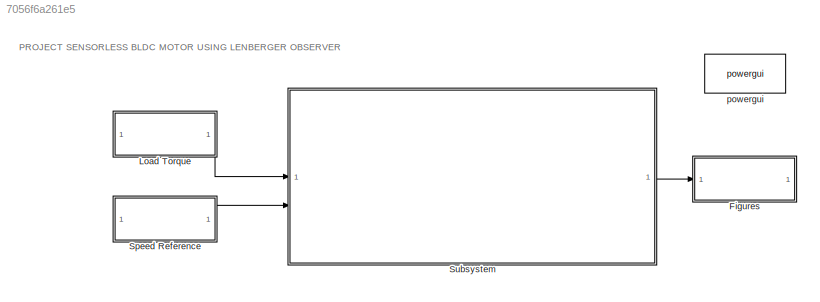
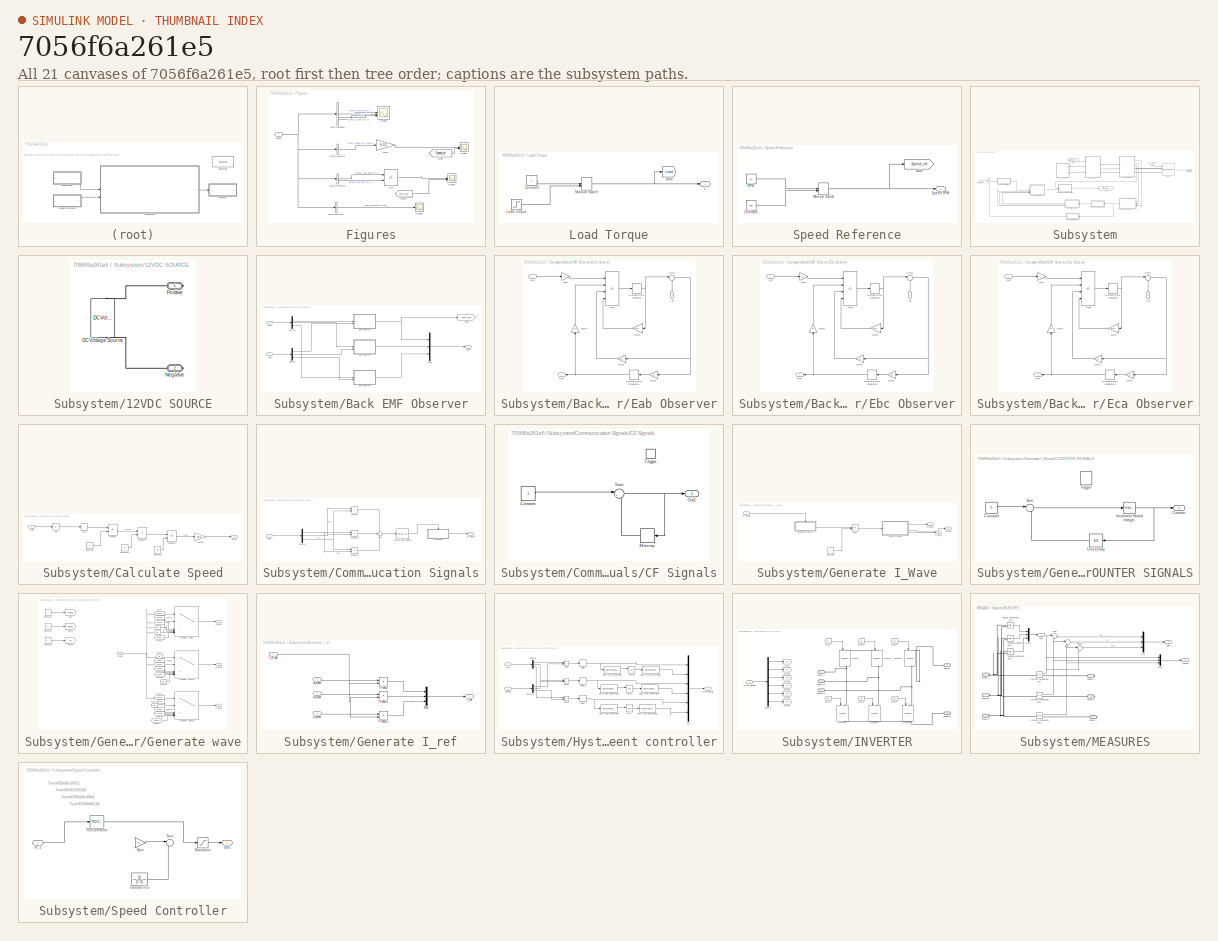
[diagram: thumbnail index - all 21 canvases of the model, root first then tree order]
MODEL slx_7056f6a261e5
KIND model
CONFIG AbsTol = auto
CONFIG EnableMultiTasking = off
CONFIG FixedStep = auto
CONFIG MaxStep = auto
CONFIG MinStep = auto
CONFIG RelTol = 1e-3
CONFIG SampleTimeConstraint = Unconstrained
CONFIG SolverName = VariableStepAuto
CONFIG StartTime = 0.0
CONFIG StopTime = 15
BLOCK [SubSystem] Figures
BLOCK [BusSelector] Figures/Bus Selector
  OutputSignals = Stator current is_a (A),Stator current is_b (A),Stator current is_c (A)
BLOCK [BusSelector] Figures/Bus Selector1
  OutputSignals = Rotor speed wm (rad/s)
BLOCK [BusSelector] Figures/Bus Selector2
  OutputSignals = Electromagnetic torque Te (N*m)
BLOCK [BusSelector] Figures/Bus Selector3
  OutputSignals = Stator back EMF e_a (V),Stator back EMF e_b (V)
BLOCK [From] Figures/From
  GotoTag = Speed_ref
  TagVisibility = global
BLOCK [From] Figures/From1
  GotoTag = user_e_ab
  TagVisibility = global
BLOCK [Gain] Figures/Gain
  Gain = 9.55
BLOCK [Inport] Figures/Meas
BLOCK [Scope] Figures/Scope
  Floating = off
  NumInputPorts = 2
  ScopeSpecificationString = Simulink.scopes.TimeScopeBlockCfg('CurrentConfiguration', extmgr.ConfigurationSet(extmgr.Configuration('Core','General UI',true),extmgr.Configuration('Core','Source UI',true),extmgr.Configuration('Sources','WiredSimulink',true),extmgr.Configuration('Visuals','Time Domain',true,'SerializedDisplays',{struct('MinYLimReal','-99.25691','MaxYLimReal','393.31218','YLabelReal','','MinYLimMag','0.00000','M...<+1490ch>
BLOCK [Scope] Figures/Scope1
  Floating = off
  NumInputPorts = 1
  ScopeSpecificationString = Simulink.scopes.TimeScopeBlockCfg('CurrentConfiguration', extmgr.ConfigurationSet(extmgr.Configuration('Core','General UI',true),extmgr.Configuration('Core','Source UI',true),extmgr.Configuration('Sources','WiredSimulink',true,'DataLoggingVariableName','ScopeData1'),extmgr.Configuration('Visuals','Time Domain',true,'SerializedDisplays',{struct('MinYLimReal','-0.08718','MaxYLimReal','0.08502','YLab...<+1511ch>
BLOCK [Scope] Figures/Scope2
  Floating = off
  NumInputPorts = 2
  ScopeSpecificationString = Simulink.scopes.TimeScopeBlockCfg('CurrentConfiguration', extmgr.ConfigurationSet(extmgr.Configuration('Core','General UI',true),extmgr.Configuration('Core','Source UI',true),extmgr.Configuration('Sources','WiredSimulink',true,'DataLoggingVariableName','ScopeData2'),extmgr.Configuration('Visuals','Time Domain',true,'SerializedDisplays',{struct('MinYLimReal','-1.00505','MaxYLimReal','0.81695','YLab...<+1540ch>
BLOCK [Scope] Figures/Scope3
  Floating = off
  NumInputPorts = 3
  ScopeSpecificationString = Simulink.scopes.TimeScopeBlockCfg('CurrentConfiguration', extmgr.ConfigurationSet(extmgr.Configuration('Core','General UI',true),extmgr.Configuration('Core','Source UI',true),extmgr.Configuration('Sources','WiredSimulink',true,'DataLoggingVariableName','ScopeData3'),extmgr.Configuration('Visuals','Time Domain',true,'SerializedDisplays',{struct('MinYLimReal','-0.34765','MaxYLimReal','1.05709','YLab...<+1579ch>
BLOCK [Sum] Figures/Sum
  IconShape = rectangular
  Inputs = +-
BLOCK [SubSystem] Load Torque
BLOCK [Constant] Load Torque/Constant
  Value = 0
BLOCK [Goto] Load Torque/Goto
  GotoTag = Load
BLOCK [Outport] Load Torque/L
BLOCK [Step] Load Torque/Load Torque
  SampleTime = 0
BLOCK [ManualSwitch] Load Torque/Manual Switch
BLOCK [SubSystem] Speed Reference
BLOCK [Constant] Speed Reference/1000rpm
  Value = 2000
BLOCK [Goto] Speed Reference/Goto
  GotoTag = Speed_ref
  TagVisibility = global
BLOCK [ManualSwitch] Speed Reference/Manual Switch
BLOCK [Constant] Speed Reference/RPM
  Value = -50
BLOCK [Outport] Speed Reference/Speed RPM
BLOCK [SubSystem] Subsystem
BLOCK [SubSystem] Subsystem/12VDC SOURCE
BLOCK [Reference] Subsystem/12VDC SOURCE/DC Voltage Source  REF=spsDCVoltageSourceLib/DC Voltage Source
  LibrarySourceBlock = sps_lib/Sources/DC Voltage Source
  SourceBlock = spsDCVoltageSourceLib/DC Voltage Source
  SourceType = DC Voltage Source
BLOCK [PMIOPort] Subsystem/12VDC SOURCE/Negative
  NameLocation = top
  Port = 2
  Side = Right
BLOCK [PMIOPort] Subsystem/12VDC SOURCE/Positive
  NameLocation = top
  Side = Right
BLOCK [Reference] Subsystem/BLDC  REF=spsPermanentMagnetSynchronousMachineLib/Permanent Magnet
Synchronous Machine
  LibrarySourceBlock = sps_lib/Electrical Machines/Permanent Magnet\nSynchronous Machine
  SourceBlock = spsPermanentMagnetSynchronousMachineLib/Permanent Magnet\nSynchronous Machine
  SourceType = Permanent Magnet Synchronous Machine
BLOCK [SubSystem] Subsystem/Back EMF Observer
  NameLocation = top
BLOCK [Demux] Subsystem/Back EMF Observer/Demux
  Outputs = 3
BLOCK [Demux] Subsystem/Back EMF Observer/Demux1
  Outputs = 3
BLOCK [SubSystem] Subsystem/Back EMF Observer/Eab Observer
BLOCK [DiscreteIntegrator] Subsystem/Back EMF Observer/Eab Observer/Discrete-Time Integrator
  ICPrevOutput = DiscIntNeverNeededParam
  ICPrevScaledInput = DiscIntNeverNeededParam
  InitialConditionSetting = Auto
  SampleTime = Ts
BLOCK [DiscreteIntegrator] Subsystem/Back EMF Observer/Eab Observer/Discrete-Time Integrator1
  ICPrevOutput = DiscIntNeverNeededParam
  ICPrevScaledInput = DiscIntNeverNeededParam
  InitialConditionSetting = Auto
  SampleTime = Ts
BLOCK [Gain] Subsystem/Back EMF Observer/Eab Observer/Gain
  Gain = 1/L
BLOCK [Gain] Subsystem/Back EMF Observer/Eab Observer/Gain1
  Gain = R/L
  NameLocation = top
BLOCK [Gain] Subsystem/Back EMF Observer/Eab Observer/Gain2
  Gain = K1
BLOCK [Gain] Subsystem/Back EMF Observer/Eab Observer/Gain3
  Gain = K2
BLOCK [Gain] Subsystem/Back EMF Observer/Eab Observer/Gain4
  Gain = 1/L
  NameLocation = right
BLOCK [Sum] Subsystem/Back EMF Observer/Eab Observer/Sum
  IconShape = rectangular
  Inputs = +-+-
BLOCK [Sum] Subsystem/Back EMF Observer/Eab Observer/Sum2
  Inputs = |-+
BLOCK [Outport] Subsystem/Back EMF Observer/Eab Observer/e_ab
BLOCK [Inport] Subsystem/Back EMF Observer/Eab Observer/i_ab
  NameLocation = left
  Port = 2
BLOCK [Inport] Subsystem/Back EMF Observer/Eab Observer/u_ab
BLOCK [SubSystem] Subsystem/Back EMF Observer/Ebc Observer
BLOCK [DiscreteIntegrator] Subsystem/Back EMF Observer/Ebc Observer/Discrete-Time Integrator
  ICPrevOutput = DiscIntNeverNeededParam
  ICPrevScaledInput = DiscIntNeverNeededParam
  InitialConditionSetting = Auto
  SampleTime = Ts
BLOCK [DiscreteIntegrator] Subsystem/Back EMF Observer/Ebc Observer/Discrete-Time Integrator1
  ICPrevOutput = DiscIntNeverNeededParam
  ICPrevScaledInput = DiscIntNeverNeededParam
  InitialConditionSetting = Auto
  SampleTime = Ts
BLOCK [Gain] Subsystem/Back EMF Observer/Ebc Observer/Gain
  Gain = 1/L
BLOCK [Gain] Subsystem/Back EMF Observer/Ebc Observer/Gain1
  Gain = R/L
  NameLocation = top
BLOCK [Gain] Subsystem/Back EMF Observer/Ebc Observer/Gain2
  Gain = K1
BLOCK [Gain] Subsystem/Back EMF Observer/Ebc Observer/Gain3
  Gain = K2
BLOCK [Gain] Subsystem/Back EMF Observer/Ebc Observer/Gain4
  Gain = 1/L
  NameLocation = right
BLOCK [Sum] Subsystem/Back EMF Observer/Ebc Observer/Sum
  IconShape = rectangular
  Inputs = +-+-
BLOCK [Sum] Subsystem/Back EMF Observer/Ebc Observer/Sum2
  Inputs = |-+
BLOCK [Outport] Subsystem/Back EMF Observer/Ebc Observer/e_bc
BLOCK [Inport] Subsystem/Back EMF Observer/Ebc Observer/i_bc
  NameLocation = left
  Port = 2
BLOCK [Inport] Subsystem/Back EMF Observer/Ebc Observer/u_bc
BLOCK [SubSystem] Subsystem/Back EMF Observer/Eca Observer
BLOCK [DiscreteIntegrator] Subsystem/Back EMF Observer/Eca Observer/Discrete-Time Integrator
  ICPrevOutput = DiscIntNeverNeededParam
  ICPrevScaledInput = DiscIntNeverNeededParam
  InitialConditionSetting = Auto
  SampleTime = Ts
BLOCK [DiscreteIntegrator] Subsystem/Back EMF Observer/Eca Observer/Discrete-Time Integrator1
  ICPrevOutput = DiscIntNeverNeededParam
  ICPrevScaledInput = DiscIntNeverNeededParam
  InitialConditionSetting = Auto
  SampleTime = Ts
BLOCK [Gain] Subsystem/Back EMF Observer/Eca Observer/Gain
  Gain = 1/L
BLOCK [Gain] Subsystem/Back EMF Observer/Eca Observer/Gain1
  Gain = R/L
  NameLocation = top
BLOCK [Gain] Subsystem/Back EMF Observer/Eca Observer/Gain2
  Gain = K1
BLOCK [Gain] Subsystem/Back EMF Observer/Eca Observer/Gain3
  Gain = K2
BLOCK [Gain] Subsystem/Back EMF Observer/Eca Observer/Gain4
  Gain = 1/L
  NameLocation = right
BLOCK [Sum] Subsystem/Back EMF Observer/Eca Observer/Sum
  IconShape = rectangular
  Inputs = +-+-
BLOCK [Sum] Subsystem/Back EMF Observer/Eca Observer/Sum2
  Inputs = |-+
BLOCK [Outport] Subsystem/Back EMF Observer/Eca Observer/e_ca
BLOCK [Inport] Subsystem/Back EMF Observer/Eca Observer/i_ca
  NameLocation = left
  Port = 2
BLOCK [Inport] Subsystem/Back EMF Observer/Eca Observer/u_ca
BLOCK [Goto] Subsystem/Back EMF Observer/Goto
  GotoTag = user_e_ab
  TagVisibility = global
BLOCK [Mux] Subsystem/Back EMF Observer/Mux
  DisplayOption = bar
  Inputs = 3
BLOCK [Outport] Subsystem/Back EMF Observer/e_line
BLOCK [Inport] Subsystem/Back EMF Observer/i_line
BLOCK [Inport] Subsystem/Back EMF Observer/u_line
  Port = 2
BLOCK [SubSystem] Subsystem/Calculate Speed
BLOCK [Abs] Subsystem/Calculate Speed/Abs
  SaturateOnIntegerOverflow = off
BLOCK [Constant] Subsystem/Calculate Speed/Constant
  Value = 2
BLOCK [Constant] Subsystem/Calculate Speed/Constant1
  Value = Ke
BLOCK [Constant] Subsystem/Calculate Speed/Constant2
  Value = 2/P
BLOCK [MinMax] Subsystem/Calculate Speed/Max
  Function = max
BLOCK [Product] Subsystem/Calculate Speed/Product
  Inputs = */
BLOCK [Product] Subsystem/Calculate Speed/Product1
  Inputs = */
BLOCK [Product] Subsystem/Calculate Speed/Product2
  Inputs = */
BLOCK [Outport] Subsystem/Calculate Speed/W_m
BLOCK [Inport] Subsystem/Calculate Speed/e_line
BLOCK [Gain] Subsystem/Calculate Speed/rad2sec
  Gain = 30/pi
BLOCK [SubSystem] Subsystem/Communication Signals
BLOCK [SubSystem] Subsystem/Communication Signals/CF Signals
BLOCK [Outport] Subsystem/Communication Signals/CF Signals  
BLOCK [Constant] Subsystem/Communication Signals/CF Signals/Constant
BLOCK [Memory] Subsystem/Communication Signals/CF Signals/Memory
  InheritSampleTime = on
  NameLocation = top
BLOCK [Outport] Subsystem/Communication Signals/CF Signals/Out1
BLOCK [Sum] Subsystem/Communication Signals/CF Signals/Sum
  Inputs = |+-
BLOCK [TriggerPort] Subsystem/Communication Signals/CF Signals/Trigger
  PortDimensions = 1
  StatesWhenEnabling = held
  VariantControl = (inherit)
BLOCK [Demux] Subsystem/Communication Signals/Demux
  Outputs = 3
BLOCK [Reference] Subsystem/Communication Signals/Detect Rise Positive  REF=simulink/Logic and Bit
Operations/Detect Rise
Positive
  SourceBlock = simulink/Logic and Bit\nOperations/Detect Rise\nPositive
  SourceType = Detect Rise Positive
BLOCK [Product] Subsystem/Communication Signals/Product
  Inputs = */
BLOCK [Product] Subsystem/Communication Signals/Product1
  Inputs = */
BLOCK [Product] Subsystem/Communication Signals/Product2
  Inputs = */
BLOCK [Sum] Subsystem/Communication Signals/Sum
  Inputs = +++
BLOCK [Inport] Subsystem/Communication Signals/e_line
BLOCK [From] Subsystem/From
  GotoTag = Gate_Signals
BLOCK [SubSystem] Subsystem/Generate I_Wave
BLOCK [Inport] Subsystem/Generate I_Wave/CF Signals
BLOCK [SubSystem] Subsystem/Generate I_Wave/COUNTER SIGNALS
BLOCK [Constant] Subsystem/Generate I_Wave/COUNTER SIGNALS/Constant
  Value = 0
BLOCK [Outport] Subsystem/Generate I_Wave/COUNTER SIGNALS/Counter
BLOCK [Reference] Subsystem/Generate I_Wave/COUNTER SIGNALS/Increment Stored Integer  REF=hdlsllib/Math
Operations/Increment
Stored Integer
  SourceBlock = hdlsllib/Math\nOperations/Increment\nStored Integer
  SourceType = Stored Integer Value Increment
BLOCK [Sum] Subsystem/Generate I_Wave/COUNTER SIGNALS/Sum
  Inputs = |++
BLOCK [TriggerPort] Subsystem/Generate I_Wave/COUNTER SIGNALS/Trigger
  PortDimensions = 1
  StatesWhenEnabling = held
  TriggerType = either
  VariantControl = (inherit)
BLOCK [UnitDelay] Subsystem/Generate I_Wave/COUNTER SIGNALS/Unit Delay
  HasFrameUpgradeWarning = on
  SampleTime = -1
BLOCK [Constant] Subsystem/Generate I_Wave/Constant
  Value = 6
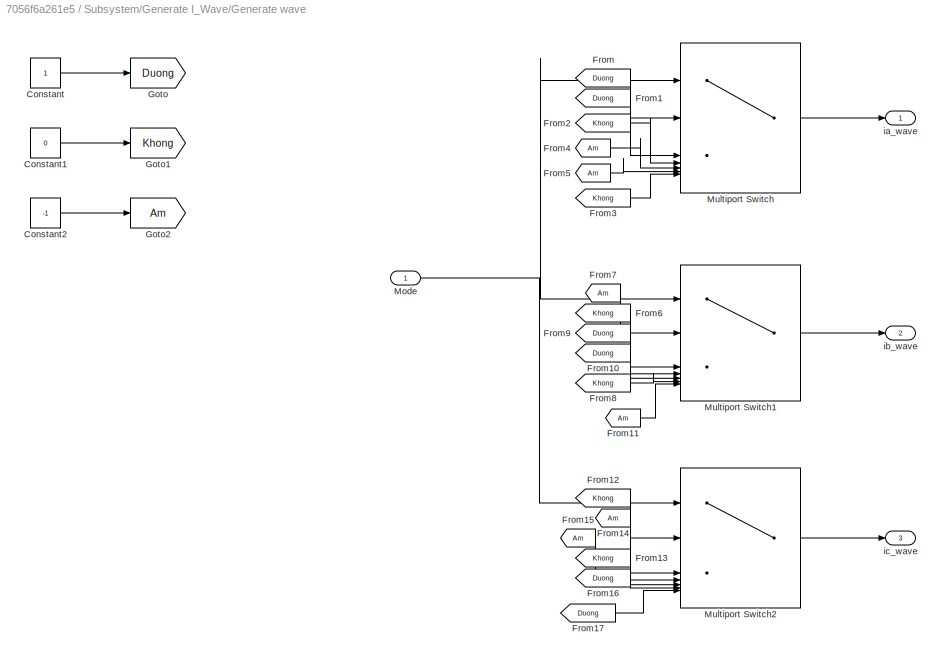
BLOCK [SubSystem] Subsystem/Generate I_Wave/Generate wave
BLOCK [Constant] Subsystem/Generate I_Wave/Generate wave/Constant
BLOCK [Constant] Subsystem/Generate I_Wave/Generate wave/Constant1
  Value = 0
BLOCK [Constant] Subsystem/Generate I_Wave/Generate wave/Constant2
  Value = -1
BLOCK [From] Subsystem/Generate I_Wave/Generate wave/From
  GotoTag = Duong
BLOCK [From] Subsystem/Generate I_Wave/Generate wave/From1
  GotoTag = Duong
BLOCK [From] Subsystem/Generate I_Wave/Generate wave/From10
  GotoTag = Duong
BLOCK [From] Subsystem/Generate I_Wave/Generate wave/From11
  GotoTag = Am
BLOCK [From] Subsystem/Generate I_Wave/Generate wave/From12
  GotoTag = Khong
BLOCK [From] Subsystem/Generate I_Wave/Generate wave/From13
  GotoTag = Khong
BLOCK [From] Subsystem/Generate I_Wave/Generate wave/From14
  GotoTag = Am
BLOCK [From] Subsystem/Generate I_Wave/Generate wave/From15
  GotoTag = Am
BLOCK [From] Subsystem/Generate I_Wave/Generate wave/From16
  GotoTag = Duong
BLOCK [From] Subsystem/Generate I_Wave/Generate wave/From17
  GotoTag = Duong
BLOCK [From] Subsystem/Generate I_Wave/Generate wave/From2
  GotoTag = Khong
BLOCK [From] Subsystem/Generate I_Wave/Generate wave/From3
  GotoTag = Khong
BLOCK [From] Subsystem/Generate I_Wave/Generate wave/From4
  GotoTag = Am
BLOCK [From] Subsystem/Generate I_Wave/Generate wave/From5
  GotoTag = Am
BLOCK [From] Subsystem/Generate I_Wave/Generate wave/From6
  GotoTag = Khong
BLOCK [From] Subsystem/Generate I_Wave/Generate wave/From7
  GotoTag = Am
BLOCK [From] Subsystem/Generate I_Wave/Generate wave/From8
  GotoTag = Khong
BLOCK [From] Subsystem/Generate I_Wave/Generate wave/From9
  GotoTag = Duong
BLOCK [Goto] Subsystem/Generate I_Wave/Generate wave/Goto
  GotoTag = Duong
BLOCK [Goto] Subsystem/Generate I_Wave/Generate wave/Goto1
  GotoTag = Khong
BLOCK [Goto] Subsystem/Generate I_Wave/Generate wave/Goto2
  GotoTag = Am
BLOCK [Inport] Subsystem/Generate I_Wave/Generate wave/Mode
BLOCK [MultiPortSwitch] Subsystem/Generate I_Wave/Generate wave/Multiport Switch
  DataPortIndices = {0,1,2,3,4,5}
  DataPortOrder = Specify indices
  InputSameDT = off
  SaturateOnIntegerOverflow = off
BLOCK [MultiPortSwitch] Subsystem/Generate I_Wave/Generate wave/Multiport Switch1
  DataPortIndices = {0,1,2,3,4,5}
  DataPortOrder = Specify indices
  InputSameDT = off
  SaturateOnIntegerOverflow = off
BLOCK [MultiPortSwitch] Subsystem/Generate I_Wave/Generate wave/Multiport Switch2
  DataPortIndices = {0,1,2,3,4,5}
  DataPortOrder = Specify indices
  InputSameDT = off
  SaturateOnIntegerOverflow = off
BLOCK [Outport] Subsystem/Generate I_Wave/Generate wave/ia_wave
BLOCK [Outport] Subsystem/Generate I_Wave/Generate wave/ib_wave
  Port = 2
BLOCK [Outport] Subsystem/Generate I_Wave/Generate wave/ic_wave
  Port = 3
BLOCK [Math] Subsystem/Generate I_Wave/Rem
  Operator = rem
BLOCK [Outport] Subsystem/Generate I_Wave/ia_wave
BLOCK [Outport] Subsystem/Generate I_Wave/ib_wave
  Port = 2
BLOCK [Outport] Subsystem/Generate I_Wave/ic_wave
  Port = 3
BLOCK [SubSystem] Subsystem/Generate I_ref
BLOCK [Inport] Subsystem/Generate I_ref/I_ref_abs
BLOCK [Mux] Subsystem/Generate I_ref/Mux
  DisplayOption = bar
  Inputs = 3
BLOCK [Product] Subsystem/Generate I_ref/Product
BLOCK [Product] Subsystem/Generate I_ref/Product1
BLOCK [Product] Subsystem/Generate I_ref/Product2
BLOCK [Outport] Subsystem/Generate I_ref/i_ref
BLOCK [Inport] Subsystem/Generate I_ref/ia_wave
  Port = 4
BLOCK [Inport] Subsystem/Generate I_ref/ib_wave
  Port = 3
BLOCK [Inport] Subsystem/Generate I_ref/ic_wave
  Port = 2
BLOCK [Goto] Subsystem/Goto
  GotoTag = Gate_Signals
BLOCK [SubSystem] Subsystem/Hysteresis current controller
BLOCK [DataTypeConversion] Subsystem/Hysteresis current controller/Data Type Conversion
  RndMeth = Floor
  SaturateOnIntegerOverflow = off
BLOCK [DataTypeConversion] Subsystem/Hysteresis current controller/Data Type Conversion1
  RndMeth = Floor
  SaturateOnIntegerOverflow = off
BLOCK [DataTypeConversion] Subsystem/Hysteresis current controller/Data Type Conversion2
  RndMeth = Floor
  SaturateOnIntegerOverflow = off
BLOCK [DataTypeConversion] Subsystem/Hysteresis current controller/Data Type Conversion3
  RndMeth = Floor
  SaturateOnIntegerOverflow = off
BLOCK [DataTypeConversion] Subsystem/Hysteresis current controller/Data Type Conversion4
  RndMeth = Floor
  SaturateOnIntegerOverflow = off
BLOCK [DataTypeConversion] Subsystem/Hysteresis current controller/Data Type Conversion5
  RndMeth = Floor
  SaturateOnIntegerOverflow = off
BLOCK [Demux] Subsystem/Hysteresis current controller/Demux
  Outputs = 3
BLOCK [Demux] Subsystem/Hysteresis current controller/Demux1
  Outputs = 3
BLOCK [Outport] Subsystem/Hysteresis current controller/Gate Signals
BLOCK [Mux] Subsystem/Hysteresis current controller/Mux
  DisplayOption = bar
  Inputs = 6
BLOCK [Logic] Subsystem/Hysteresis current controller/NOT
  AllPortsSameDT = off
  IconShape = distinctive
  Operator = NOT
  OutDataTypeStr = boolean
BLOCK [Logic] Subsystem/Hysteresis current controller/NOT1
  AllPortsSameDT = off
  IconShape = distinctive
  Operator = NOT
  OutDataTypeStr = boolean
BLOCK [Logic] Subsystem/Hysteresis current controller/NOT2
  AllPortsSameDT = off
  IconShape = distinctive
  Operator = NOT
  OutDataTypeStr = boolean
BLOCK [Relay] Subsystem/Hysteresis current controller/Relay
BLOCK [Relay] Subsystem/Hysteresis current controller/Relay1
BLOCK [Relay] Subsystem/Hysteresis current controller/Relay2
BLOCK [Sum] Subsystem/Hysteresis current controller/Sum
  IconShape = rectangular
  Inputs = +-
BLOCK [Sum] Subsystem/Hysteresis current controller/Sum1
  IconShape = rectangular
  Inputs = +-
BLOCK [Sum] Subsystem/Hysteresis current controller/Sum2
  IconShape = rectangular
  Inputs = +-
BLOCK [Inport] Subsystem/Hysteresis current controller/i_phase
BLOCK [Inport] Subsystem/Hysteresis current controller/i_ref
  Port = 2
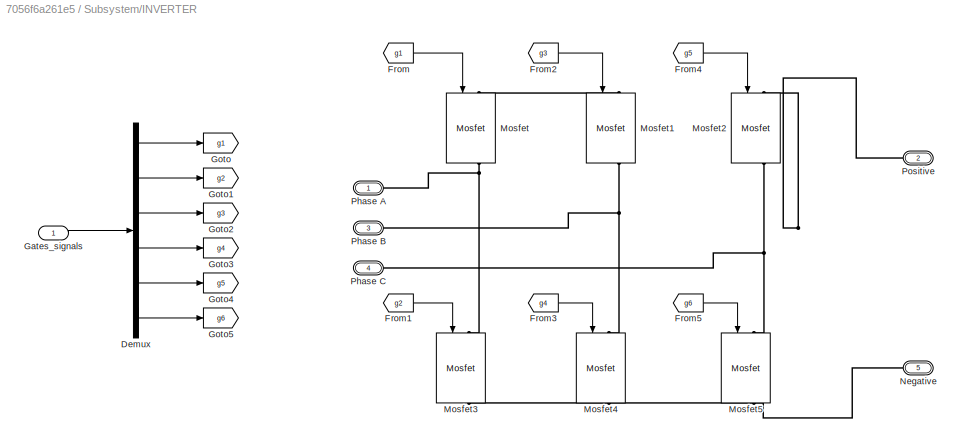
BLOCK [SubSystem] Subsystem/INVERTER
BLOCK [Demux] Subsystem/INVERTER/Demux
  Outputs = 6
BLOCK [From] Subsystem/INVERTER/From
  GotoTag = g1
BLOCK [From] Subsystem/INVERTER/From1
  GotoTag = g2
BLOCK [From] Subsystem/INVERTER/From2
  GotoTag = g3
BLOCK [From] Subsystem/INVERTER/From3
  GotoTag = g4
BLOCK [From] Subsystem/INVERTER/From4
  GotoTag = g5
BLOCK [From] Subsystem/INVERTER/From5
  GotoTag = g6
BLOCK [Inport] Subsystem/INVERTER/Gates_signals
BLOCK [Goto] Subsystem/INVERTER/Goto
  GotoTag = g1
BLOCK [Goto] Subsystem/INVERTER/Goto1
  GotoTag = g2
BLOCK [Goto] Subsystem/INVERTER/Goto2
  GotoTag = g3
BLOCK [Goto] Subsystem/INVERTER/Goto3
  GotoTag = g4
BLOCK [Goto] Subsystem/INVERTER/Goto4
  GotoTag = g5
BLOCK [Goto] Subsystem/INVERTER/Goto5
  GotoTag = g6
BLOCK [Reference] Subsystem/INVERTER/Mosfet  REF=spsMosfetLib/Mosfet
  LibrarySourceBlock = sps_lib/Power Electronics/Mosfet
  NameLocation = left
  SourceBlock = spsMosfetLib/Mosfet
  SourceType = Mosfet
BLOCK [Reference] Subsystem/INVERTER/Mosfet1  REF=spsMosfetLib/Mosfet
  LibrarySourceBlock = sps_lib/Power Electronics/Mosfet
  NameLocation = left
  SourceBlock = spsMosfetLib/Mosfet
  SourceType = Mosfet
BLOCK [Reference] Subsystem/INVERTER/Mosfet2  REF=spsMosfetLib/Mosfet
  LibrarySourceBlock = sps_lib/Power Electronics/Mosfet
  NameLocation = left
  SourceBlock = spsMosfetLib/Mosfet
  SourceType = Mosfet
BLOCK [Reference] Subsystem/INVERTER/Mosfet3  REF=spsMosfetLib/Mosfet
  LibrarySourceBlock = sps_lib/Power Electronics/Mosfet
  NameLocation = left
  SourceBlock = spsMosfetLib/Mosfet
  SourceType = Mosfet
BLOCK [Reference] Subsystem/INVERTER/Mosfet4  REF=spsMosfetLib/Mosfet
  LibrarySourceBlock = sps_lib/Power Electronics/Mosfet
  NameLocation = left
  SourceBlock = spsMosfetLib/Mosfet
  SourceType = Mosfet
BLOCK [Reference] Subsystem/INVERTER/Mosfet5  REF=spsMosfetLib/Mosfet
  LibrarySourceBlock = sps_lib/Power Electronics/Mosfet
  NameLocation = left
  SourceBlock = spsMosfetLib/Mosfet
  SourceType = Mosfet
BLOCK [PMIOPort] Subsystem/INVERTER/Negative
  NameLocation = top
  Port = 5
  Side = Left
BLOCK [PMIOPort] Subsystem/INVERTER/Phase A
  NameLocation = top
  Side = Right
BLOCK [PMIOPort] Subsystem/INVERTER/Phase B
  NameLocation = top
  Port = 3
  Side = Right
BLOCK [PMIOPort] Subsystem/INVERTER/Phase C
  NameLocation = top
  Port = 4
  Side = Right
BLOCK [PMIOPort] Subsystem/INVERTER/Positive
  NameLocation = top
  Port = 2
  Side = Left
BLOCK [Inport] Subsystem/Loas Torque
BLOCK [SubSystem] Subsystem/MEASURES
BLOCK [Reference] Subsystem/MEASURES/Current Measurement  REF=spsCurrentMeasurementLib/Current Measurement
  LibrarySourceBlock = sps_lib/Sensors and Measurements/Current Measurement
  SourceBlock = spsCurrentMeasurementLib/Current Measurement
  SourceType = Current Measurement
  UserDataPersistent = on
BLOCK [Reference] Subsystem/MEASURES/Current Measurement1  REF=spsCurrentMeasurementLib/Current Measurement
  LibrarySourceBlock = sps_lib/Sensors and Measurements/Current Measurement
  SourceBlock = spsCurrentMeasurementLib/Current Measurement
  SourceType = Current Measurement
  UserDataPersistent = on
BLOCK [Reference] Subsystem/MEASURES/Current Measurement2  REF=spsCurrentMeasurementLib/Current Measurement
  LibrarySourceBlock = sps_lib/Sensors and Measurements/Current Measurement
  SourceBlock = spsCurrentMeasurementLib/Current Measurement
  SourceType = Current Measurement
  UserDataPersistent = on
BLOCK [Mux] Subsystem/MEASURES/Mux
  DisplayOption = bar
  Inputs = 3
BLOCK [Mux] Subsystem/MEASURES/Mux1
  DisplayOption = bar
  Inputs = 3
BLOCK [Mux] Subsystem/MEASURES/Mux2
  DisplayOption = bar
  Inputs = 3
BLOCK [PMIOPort] Subsystem/MEASURES/Phase A
  NameLocation = top
  Port = 4
  Side = Right
BLOCK [PMIOPort] Subsystem/MEASURES/Phase A  
  Side = Left
BLOCK [PMIOPort] Subsystem/MEASURES/Phase B
  Port = 2
  Side = Left
BLOCK [PMIOPort] Subsystem/MEASURES/Phase B  
  NameLocation = top
  Port = 5
  Side = Right
BLOCK [PMIOPort] Subsystem/MEASURES/Phase C
  Port = 3
  Side = Left
BLOCK [PMIOPort] Subsystem/MEASURES/Phase C  
  NameLocation = top
  Port = 6
  Side = Right
BLOCK [Sum] Subsystem/MEASURES/Sum
  Inputs = |+-
BLOCK [Sum] Subsystem/MEASURES/Sum1
  Inputs = |+-
BLOCK [Sum] Subsystem/MEASURES/Sum2
  Inputs = |+-
BLOCK [Reference] Subsystem/MEASURES/Voltage Measurement  REF=spsVoltageMeasurementLib/Voltage Measurement
  LibrarySourceBlock = sps_lib/Sensors and Measurements/Voltage Measurement
  SourceBlock = spsVoltageMeasurementLib/Voltage Measurement
  SourceType = Voltage Measurement
  UserDataPersistent = on
BLOCK [Reference] Subsystem/MEASURES/Voltage Measurement1  REF=spsVoltageMeasurementLib/Voltage Measurement
  LibrarySourceBlock = sps_lib/Sensors and Measurements/Voltage Measurement
  SourceBlock = spsVoltageMeasurementLib/Voltage Measurement
  SourceType = Voltage Measurement
  UserDataPersistent = on
BLOCK [Reference] Subsystem/MEASURES/Voltage Measurement2  REF=spsVoltageMeasurementLib/Voltage Measurement
  LibrarySourceBlock = sps_lib/Sensors and Measurements/Voltage Measurement
  SourceBlock = spsVoltageMeasurementLib/Voltage Measurement
  SourceType = Voltage Measurement
  UserDataPersistent = on
BLOCK [Outport] Subsystem/MEASURES/i_line
  Port = 2
BLOCK [Outport] Subsystem/MEASURES/i_phase
  Port = 3
BLOCK [Outport] Subsystem/MEASURES/u_line
BLOCK [Outport] Subsystem/Measure
BLOCK [SubSystem] Subsystem/Speed Controller
BLOCK [Gain] Subsystem/Speed Controller/Gain
  Gain = P
BLOCK [Inport] Subsystem/Speed Controller/In_1
BLOCK [Outport] Subsystem/Speed Controller/Out1
BLOCK [Reference] Subsystem/Speed Controller/PID Controller  REF=slpidlib/PID Controller
  LibrarySourceBlock = simulink/Continuous/PID Controller
  SourceBlock = slpidlib/PID Controller
  SourceType = PID 1dof
BLOCK [Saturate] Subsystem/Speed Controller/Saturation
  LowerLimit = -11
  UpperLimit = 11
BLOCK [Sum] Subsystem/Speed Controller/Sum
  Inputs = |++
BLOCK [TransferFcn] Subsystem/Speed Controller/Transfer Fcn
  Denominator = [1 0]
  Numerator = [I]
BLOCK [Inport] Subsystem/Speed Ref
  Port = 2
BLOCK [Sum] Subsystem/Sum
  Inputs = |++
BLOCK [Reference] powergui  REF=spspowerguiLib/powergui
  LibrarySourceBlock = sps_lib/powergui
  Priority = 1
  SourceBlock = spspowerguiLib/powergui
  SourceType = PSB option menu block
ANNOTATION (root): PROJECT SENSORLESS BLDC MOTOR USING LENBERGER OBSERVER
ANNOTATION Subsystem/Speed Controller: Tuner04e83206f1f0
ANNOTATION Subsystem/Speed Controller: Tuner4f26d6e2d051
ANNOTATION Subsystem/Speed Controller: Tuner836f4fdf618b
ANNOTATION Subsystem/Speed Controller: Tunerd399ab9cd8bd
LINE Figures/Bus Selector1:1 -> Figures/Gain:1
LINE Figures/Bus Selector2:1 -> Figures/Scope1:1
LINE Figures/Bus Selector3:1 -> Figures/Sum:1
LINE Figures/Bus Selector3:2 -> Figures/Sum:2
LINE Figures/Bus Selector:1 -> Figures/Scope3:1
LINE Figures/Bus Selector:2 -> Figures/Scope3:2
LINE Figures/Bus Selector:3 -> Figures/Scope3:3
LINE Figures/From1:1 -> Figures/Scope2:2
LINE Figures/From:1 -> Figures/Scope:2
LINE Figures/Gain:1 -> Figures/Scope:1
NET Figures/Meas:1 -> Figures/Bus Selector1:1, Figures/Bus Selector2:1, Figures/Bus Selector3:1, Figures/Bus Selector:1
LINE Figures/Sum:1 -> Figures/Scope2:1
LINE Load Torque/Constant:1 -> Load Torque/Manual Switch:1
LINE Load Torque/Load Torque:1 -> Load Torque/Manual Switch:2
NET Load Torque/Manual Switch:1 -> Load Torque/Goto:1, Load Torque/L:1
LINE Load Torque:1 -> Subsystem:1
LINE Speed Reference/1000rpm:1 -> Speed Reference/Manual Switch:2
NET Speed Reference/Manual Switch:1 -> Speed Reference/Goto:1, Speed Reference/Speed RPM:1
LINE Speed Reference/RPM:1 -> Speed Reference/Manual Switch:1
LINE Speed Reference:1 -> Subsystem:2
LINE Subsystem/BLDC:1 -> Subsystem/Measure:1
LINE Subsystem/Back EMF Observer/Demux1:1 -> Subsystem/Back EMF Observer/Eab Observer:1
LINE Subsystem/Back EMF Observer/Demux1:2 -> Subsystem/Back EMF Observer/Ebc Observer:1
LINE Subsystem/Back EMF Observer/Demux1:3 -> Subsystem/Back EMF Observer/Eca Observer:1
LINE Subsystem/Back EMF Observer/Demux:1 -> Subsystem/Back EMF Observer/Eab Observer:2
LINE Subsystem/Back EMF Observer/Demux:2 -> Subsystem/Back EMF Observer/Ebc Observer:2
LINE Subsystem/Back EMF Observer/Demux:3 -> Subsystem/Back EMF Observer/Eca Observer:2
NET Subsystem/Back EMF Observer/Eab Observer/Discrete-Time Integrator1:1 -> Subsystem/Back EMF Observer/Eab Observer/Gain4:1, Subsystem/Back EMF Observer/Eab Observer/e_ab:1
NET Subsystem/Back EMF Observer/Eab Observer/Discrete-Time Integrator:1 -> Subsystem/Back EMF Observer/Eab Observer/Gain1:1, Subsystem/Back EMF Observer/Eab Observer/Sum2:1
LINE Subsystem/Back EMF Observer/Eab Observer/Gain1:1 -> Subsystem/Back EMF Observer/Eab Observer/Sum:4
LINE Subsystem/Back EMF Observer/Eab Observer/Gain2:1 -> Subsystem/Back EMF Observer/Eab Observer/Sum:3
LINE Subsystem/Back EMF Observer/Eab Observer/Gain3:1 -> Subsystem/Back EMF Observer/Eab Observer/Discrete-Time Integrator1:1
LINE Subsystem/Back EMF Observer/Eab Observer/Gain4:1 -> Subsystem/Back EMF Observer/Eab Observer/Sum:2
LINE Subsystem/Back EMF Observer/Eab Observer/Gain:1 -> Subsystem/Back EMF Observer/Eab Observer/Sum:1
NET Subsystem/Back EMF Observer/Eab Observer/Sum2:1 -> Subsystem/Back EMF Observer/Eab Observer/Gain2:1, Subsystem/Back EMF Observer/Eab Observer/Gain3:1
LINE Subsystem/Back EMF Observer/Eab Observer/Sum:1 -> Subsystem/Back EMF Observer/Eab Observer/Discrete-Time Integrator:1
LINE Subsystem/Back EMF Observer/Eab Observer/i_ab:1 -> Subsystem/Back EMF Observer/Eab Observer/Sum2:2
LINE Subsystem/Back EMF Observer/Eab Observer/u_ab:1 -> Subsystem/Back EMF Observer/Eab Observer/Gain:1
NET Subsystem/Back EMF Observer/Eab Observer:1 -> Subsystem/Back EMF Observer/Goto:1, Subsystem/Back EMF Observer/Mux:1
NET Subsystem/Back EMF Observer/Ebc Observer/Discrete-Time Integrator1:1 -> Subsystem/Back EMF Observer/Ebc Observer/Gain4:1, Subsystem/Back EMF Observer/Ebc Observer/e_bc:1
NET Subsystem/Back EMF Observer/Ebc Observer/Discrete-Time Integrator:1 -> Subsystem/Back EMF Observer/Ebc Observer/Gain1:1, Subsystem/Back EMF Observer/Ebc Observer/Sum2:1
LINE Subsystem/Back EMF Observer/Ebc Observer/Gain1:1 -> Subsystem/Back EMF Observer/Ebc Observer/Sum:4
LINE Subsystem/Back EMF Observer/Ebc Observer/Gain2:1 -> Subsystem/Back EMF Observer/Ebc Observer/Sum:3
LINE Subsystem/Back EMF Observer/Ebc Observer/Gain3:1 -> Subsystem/Back EMF Observer/Ebc Observer/Discrete-Time Integrator1:1
LINE Subsystem/Back EMF Observer/Ebc Observer/Gain4:1 -> Subsystem/Back EMF Observer/Ebc Observer/Sum:2
LINE Subsystem/Back EMF Observer/Ebc Observer/Gain:1 -> Subsystem/Back EMF Observer/Ebc Observer/Sum:1
NET Subsystem/Back EMF Observer/Ebc Observer/Sum2:1 -> Subsystem/Back EMF Observer/Ebc Observer/Gain2:1, Subsystem/Back EMF Observer/Ebc Observer/Gain3:1
LINE Subsystem/Back EMF Observer/Ebc Observer/Sum:1 -> Subsystem/Back EMF Observer/Ebc Observer/Discrete-Time Integrator:1
LINE Subsystem/Back EMF Observer/Ebc Observer/i_bc:1 -> Subsystem/Back EMF Observer/Ebc Observer/Sum2:2
LINE Subsystem/Back EMF Observer/Ebc Observer/u_bc:1 -> Subsystem/Back EMF Observer/Ebc Observer/Gain:1
LINE Subsystem/Back EMF Observer/Ebc Observer:1 -> Subsystem/Back EMF Observer/Mux:2
NET Subsystem/Back EMF Observer/Eca Observer/Discrete-Time Integrator1:1 -> Subsystem/Back EMF Observer/Eca Observer/Gain4:1, Subsystem/Back EMF Observer/Eca Observer/e_ca:1
NET Subsystem/Back EMF Observer/Eca Observer/Discrete-Time Integrator:1 -> Subsystem/Back EMF Observer/Eca Observer/Gain1:1, Subsystem/Back EMF Observer/Eca Observer/Sum2:1
LINE Subsystem/Back EMF Observer/Eca Observer/Gain1:1 -> Subsystem/Back EMF Observer/Eca Observer/Sum:4
LINE Subsystem/Back EMF Observer/Eca Observer/Gain2:1 -> Subsystem/Back EMF Observer/Eca Observer/Sum:3
LINE Subsystem/Back EMF Observer/Eca Observer/Gain3:1 -> Subsystem/Back EMF Observer/Eca Observer/Discrete-Time Integrator1:1
LINE Subsystem/Back EMF Observer/Eca Observer/Gain4:1 -> Subsystem/Back EMF Observer/Eca Observer/Sum:2
LINE Subsystem/Back EMF Observer/Eca Observer/Gain:1 -> Subsystem/Back EMF Observer/Eca Observer/Sum:1
NET Subsystem/Back EMF Observer/Eca Observer/Sum2:1 -> Subsystem/Back EMF Observer/Eca Observer/Gain2:1, Subsystem/Back EMF Observer/Eca Observer/Gain3:1
LINE Subsystem/Back EMF Observer/Eca Observer/Sum:1 -> Subsystem/Back EMF Observer/Eca Observer/Discrete-Time Integrator:1
LINE Subsystem/Back EMF Observer/Eca Observer/i_ca:1 -> Subsystem/Back EMF Observer/Eca Observer/Sum2:2
LINE Subsystem/Back EMF Observer/Eca Observer/u_ca:1 -> Subsystem/Back EMF Observer/Eca Observer/Gain:1
LINE Subsystem/Back EMF Observer/Eca Observer:1 -> Subsystem/Back EMF Observer/Mux:3
LINE Subsystem/Back EMF Observer/Mux:1 -> Subsystem/Back EMF Observer/e_line:1
LINE Subsystem/Back EMF Observer/i_line:1 -> Subsystem/Back EMF Observer/Demux:1
LINE Subsystem/Back EMF Observer/u_line:1 -> Subsystem/Back EMF Observer/Demux1:1
NET Subsystem/Back EMF Observer:1 -> Subsystem/Calculate Speed:1, Subsystem/Communication Signals:1
LINE Subsystem/Calculate Speed/Abs:1 -> Subsystem/Calculate Speed/Max:1
LINE Subsystem/Calculate Speed/Constant1:1 -> Subsystem/Calculate Speed/Product1:2
LINE Subsystem/Calculate Speed/Constant2:1 -> Subsystem/Calculate Speed/Product2:2
LINE Subsystem/Calculate Speed/Constant:1 -> Subsystem/Calculate Speed/Product:2
LINE Subsystem/Calculate Speed/Max:1 -> Subsystem/Calculate Speed/Product:1
LINE Subsystem/Calculate Speed/Product1:1 -> Subsystem/Calculate Speed/Product2:1
LINE Subsystem/Calculate Speed/Product2:1 -> Subsystem/Calculate Speed/rad2sec:1
LINE Subsystem/Calculate Speed/Product:1 -> Subsystem/Calculate Speed/Product1:1
LINE Subsystem/Calculate Speed/e_line:1 -> Subsystem/Calculate Speed/Abs:1
LINE Subsystem/Calculate Speed/rad2sec:1 -> Subsystem/Calculate Speed/W_m:1
LINE Subsystem/Calculate Speed:1 -> Subsystem/Sum:2
LINE Subsystem/Communication Signals/CF Signals/Constant:1 -> Subsystem/Communication Signals/CF Signals/Sum:1
LINE Subsystem/Communication Signals/CF Signals/Memory:1 -> Subsystem/Communication Signals/CF Signals/Sum:2
NET Subsystem/Communication Signals/CF Signals/Sum:1 -> Subsystem/Communication Signals/CF Signals/Memory:1, Subsystem/Communication Signals/CF Signals/Out1:1
LINE Subsystem/Communication Signals/CF Signals:1 -> Subsystem/Communication Signals/CF Signals  :1
NET Subsystem/Communication Signals/Demux:1 -> Subsystem/Communication Signals/Product1:1, Subsystem/Communication Signals/Product2:2
NET Subsystem/Communication Signals/Demux:2 -> Subsystem/Communication Signals/Product1:2, Subsystem/Communication Signals/Product:1
NET Subsystem/Communication Signals/Demux:3 -> Subsystem/Communication Signals/Product2:1, Subsystem/Communication Signals/Product:2
LINE Subsystem/Communication Signals/Detect Rise Positive:1 -> Subsystem/Communication Signals/CF Signals:trigger
LINE Subsystem/Communication Signals/Product1:1 -> Subsystem/Communication Signals/Sum:2
LINE Subsystem/Communication Signals/Product2:1 -> Subsystem/Communication Signals/Sum:3
LINE Subsystem/Communication Signals/Product:1 -> Subsystem/Communication Signals/Sum:1
LINE Subsystem/Communication Signals/Sum:1 -> Subsystem/Communication Signals/Detect Rise Positive:1
LINE Subsystem/Communication Signals/e_line:1 -> Subsystem/Communication Signals/Demux:1
LINE Subsystem/Communication Signals:1 -> Subsystem/Generate I_Wave:1
LINE Subsystem/From:1 -> Subsystem/INVERTER:1
LINE Subsystem/Generate I_Wave/CF Signals:1 -> Subsystem/Generate I_Wave/COUNTER SIGNALS:trigger
LINE Subsystem/Generate I_Wave/COUNTER SIGNALS/Constant:1 -> Subsystem/Generate I_Wave/COUNTER SIGNALS/Sum:1
NET Subsystem/Generate I_Wave/COUNTER SIGNALS/Increment Stored Integer:1 -> Subsystem/Generate I_Wave/COUNTER SIGNALS/Counter:1, Subsystem/Generate I_Wave/COUNTER SIGNALS/Unit Delay:1
LINE Subsystem/Generate I_Wave/COUNTER SIGNALS/Sum:1 -> Subsystem/Generate I_Wave/COUNTER SIGNALS/Increment Stored Integer:1
LINE Subsystem/Generate I_Wave/COUNTER SIGNALS/Unit Delay:1 -> Subsystem/Generate I_Wave/COUNTER SIGNALS/Sum:2
LINE Subsystem/Generate I_Wave/COUNTER SIGNALS:1 -> Subsystem/Generate I_Wave/Rem:1
LINE Subsystem/Generate I_Wave/Constant:1 -> Subsystem/Generate I_Wave/Rem:2
LINE Subsystem/Generate I_Wave/Generate wave/Constant1:1 -> Subsystem/Generate I_Wave/Generate wave/Goto1:1
LINE Subsystem/Generate I_Wave/Generate wave/Constant2:1 -> Subsystem/Generate I_Wave/Generate wave/Goto2:1
LINE Subsystem/Generate I_Wave/Generate wave/Constant:1 -> Subsystem/Generate I_Wave/Generate wave/Goto:1
LINE Subsystem/Generate I_Wave/Generate wave/From10:1 -> Subsystem/Generate I_Wave/Generate wave/Multiport Switch1:5
LINE Subsystem/Generate I_Wave/Generate wave/From11:1 -> Subsystem/Generate I_Wave/Generate wave/Multiport Switch1:7
LINE Subsystem/Generate I_Wave/Generate wave/From12:1 -> Subsystem/Generate I_Wave/Generate wave/Multiport Switch2:2
LINE Subsystem/Generate I_Wave/Generate wave/From13:1 -> Subsystem/Generate I_Wave/Generate wave/Multiport Switch2:5
LINE Subsystem/Generate I_Wave/Generate wave/From14:1 -> Subsystem/Generate I_Wave/Generate wave/Multiport Switch2:3
LINE Subsystem/Generate I_Wave/Generate wave/From15:1 -> Subsystem/Generate I_Wave/Generate wave/Multiport Switch2:4
LINE Subsystem/Generate I_Wave/Generate wave/From16:1 -> Subsystem/Generate I_Wave/Generate wave/Multiport Switch2:6
LINE Subsystem/Generate I_Wave/Generate wave/From17:1 -> Subsystem/Generate I_Wave/Generate wave/Multiport Switch2:7
LINE Subsystem/Generate I_Wave/Generate wave/From1:1 -> Subsystem/Generate I_Wave/Generate wave/Multiport Switch:3
LINE Subsystem/Generate I_Wave/Generate wave/From2:1 -> Subsystem/Generate I_Wave/Generate wave/Multiport Switch:4
LINE Subsystem/Generate I_Wave/Generate wave/From3:1 -> Subsystem/Generate I_Wave/Generate wave/Multiport Switch:7
LINE Subsystem/Generate I_Wave/Generate wave/From4:1 -> Subsystem/Generate I_Wave/Generate wave/Multiport Switch:5
LINE Subsystem/Generate I_Wave/Generate wave/From5:1 -> Subsystem/Generate I_Wave/Generate wave/Multiport Switch:6
LINE Subsystem/Generate I_Wave/Generate wave/From6:1 -> Subsystem/Generate I_Wave/Generate wave/Multiport Switch1:3
LINE Subsystem/Generate I_Wave/Generate wave/From7:1 -> Subsystem/Generate I_Wave/Generate wave/Multiport Switch1:2
LINE Subsystem/Generate I_Wave/Generate wave/From8:1 -> Subsystem/Generate I_Wave/Generate wave/Multiport Switch1:6
LINE Subsystem/Generate I_Wave/Generate wave/From9:1 -> Subsystem/Generate I_Wave/Generate wave/Multiport Switch1:4
LINE Subsystem/Generate I_Wave/Generate wave/From:1 -> Subsystem/Generate I_Wave/Generate wave/Multiport Switch:2
NET Subsystem/Generate I_Wave/Generate wave/Mode:1 -> Subsystem/Generate I_Wave/Generate wave/Multiport Switch1:1, Subsystem/Generate I_Wave/Generate wave/Multiport Switch2:1, Subsystem/Generate I_Wave/Generate wave/Multiport Switch:1
LINE Subsystem/Generate I_Wave/Generate wave/Multiport Switch1:1 -> Subsystem/Generate I_Wave/Generate wave/ib_wave:1
LINE Subsystem/Generate I_Wave/Generate wave/Multiport Switch2:1 -> Subsystem/Generate I_Wave/Generate wave/ic_wave:1
LINE Subsystem/Generate I_Wave/Generate wave/Multiport Switch:1 -> Subsystem/Generate I_Wave/Generate wave/ia_wave:1
LINE Subsystem/Generate I_Wave/Generate wave:1 -> Subsystem/Generate I_Wave/ia_wave:1
LINE Subsystem/Generate I_Wave/Generate wave:2 -> Subsystem/Generate I_Wave/ib_wave:1
LINE Subsystem/Generate I_Wave/Generate wave:3 -> Subsystem/Generate I_Wave/ic_wave:1
LINE Subsystem/Generate I_Wave/Rem:1 -> Subsystem/Generate I_Wave/Generate wave:1
LINE Subsystem/Generate I_Wave:1 -> Subsystem/Generate I_ref:4
LINE Subsystem/Generate I_Wave:2 -> Subsystem/Generate I_ref:3
LINE Subsystem/Generate I_Wave:3 -> Subsystem/Generate I_ref:2
NET Subsystem/Generate I_ref/I_ref_abs:1 -> Subsystem/Generate I_ref/Product1:2, Subsystem/Generate I_ref/Product2:2, Subsystem/Generate I_ref/Product:2
LINE Subsystem/Generate I_ref/Mux:1 -> Subsystem/Generate I_ref/i_ref:1
LINE Subsystem/Generate I_ref/Product1:1 -> Subsystem/Generate I_ref/Mux:2
LINE Subsystem/Generate I_ref/Product2:1 -> Subsystem/Generate I_ref/Mux:3
LINE Subsystem/Generate I_ref/Product:1 -> Subsystem/Generate I_ref/Mux:1
LINE Subsystem/Generate I_ref/ia_wave:1 -> Subsystem/Generate I_ref/Product:1
LINE Subsystem/Generate I_ref/ib_wave:1 -> Subsystem/Generate I_ref/Product1:1
LINE Subsystem/Generate I_ref/ic_wave:1 -> Subsystem/Generate I_ref/Product2:1
LINE Subsystem/Generate I_ref:1 -> Subsystem/Hysteresis current controller:2
LINE Subsystem/Hysteresis current controller/Data Type Conversion1:1 -> Subsystem/Hysteresis current controller/NOT1:1
LINE Subsystem/Hysteresis current controller/Data Type Conversion2:1 -> Subsystem/Hysteresis current controller/NOT:1
LINE Subsystem/Hysteresis current controller/Data Type Conversion3:1 -> Subsystem/Hysteresis current controller/Mux:2
LINE Subsystem/Hysteresis current controller/Data Type Conversion4:1 -> Subsystem/Hysteresis current controller/Mux:4
LINE Subsystem/Hysteresis current controller/Data Type Conversion5:1 -> Subsystem/Hysteresis current controller/Mux:6
LINE Subsystem/Hysteresis current controller/Data Type Conversion:1 -> Subsystem/Hysteresis current controller/NOT2:1
LINE Subsystem/Hysteresis current controller/Demux1:1 -> Subsystem/Hysteresis current controller/Sum:2
LINE Subsystem/Hysteresis current controller/Demux1:2 -> Subsystem/Hysteresis current controller/Sum1:2
LINE Subsystem/Hysteresis current controller/Demux1:3 -> Subsystem/Hysteresis current controller/Sum2:2
LINE Subsystem/Hysteresis current controller/Demux:1 -> Subsystem/Hysteresis current controller/Sum:1
LINE Subsystem/Hysteresis current controller/Demux:2 -> Subsystem/Hysteresis current controller/Sum1:1
LINE Subsystem/Hysteresis current controller/Demux:3 -> Subsystem/Hysteresis current controller/Sum2:1
LINE Subsystem/Hysteresis current controller/Mux:1 -> Subsystem/Hysteresis current controller/Gate Signals:1
LINE Subsystem/Hysteresis current controller/NOT1:1 -> Subsystem/Hysteresis current controller/Data Type Conversion4:1
LINE Subsystem/Hysteresis current controller/NOT2:1 -> Subsystem/Hysteresis current controller/Data Type Conversion3:1
LINE Subsystem/Hysteresis current controller/NOT:1 -> Subsystem/Hysteresis current controller/Data Type Conversion5:1
NET Subsystem/Hysteresis current controller/Relay1:1 -> Subsystem/Hysteresis current controller/Data Type Conversion1:1, Subsystem/Hysteresis current controller/Mux:3
NET Subsystem/Hysteresis current controller/Relay2:1 -> Subsystem/Hysteresis current controller/Data Type Conversion2:1, Subsystem/Hysteresis current controller/Mux:5
NET Subsystem/Hysteresis current controller/Relay:1 -> Subsystem/Hysteresis current controller/Data Type Conversion:1, Subsystem/Hysteresis current controller/Mux:1
LINE Subsystem/Hysteresis current controller/Sum1:1 -> Subsystem/Hysteresis current controller/Relay1:1
LINE Subsystem/Hysteresis current controller/Sum2:1 -> Subsystem/Hysteresis current controller/Relay2:1
LINE Subsystem/Hysteresis current controller/Sum:1 -> Subsystem/Hysteresis current controller/Relay:1
LINE Subsystem/Hysteresis current controller/i_phase:1 -> Subsystem/Hysteresis current controller/Demux1:1
LINE Subsystem/Hysteresis current controller/i_ref:1 -> Subsystem/Hysteresis current controller/Demux:1
LINE Subsystem/Hysteresis current controller:1 -> Subsystem/Goto:1
LINE Subsystem/INVERTER/Demux:1 -> Subsystem/INVERTER/Goto:1
LINE Subsystem/INVERTER/Demux:2 -> Subsystem/INVERTER/Goto1:1
LINE Subsystem/INVERTER/Demux:3 -> Subsystem/INVERTER/Goto2:1
LINE Subsystem/INVERTER/Demux:4 -> Subsystem/INVERTER/Goto3:1
LINE Subsystem/INVERTER/Demux:5 -> Subsystem/INVERTER/Goto4:1
LINE Subsystem/INVERTER/Demux:6 -> Subsystem/INVERTER/Goto5:1
LINE Subsystem/INVERTER/From1:1 -> Subsystem/INVERTER/Mosfet3:1
LINE Subsystem/INVERTER/From2:1 -> Subsystem/INVERTER/Mosfet1:1
LINE Subsystem/INVERTER/From3:1 -> Subsystem/INVERTER/Mosfet4:1
LINE Subsystem/INVERTER/From4:1 -> Subsystem/INVERTER/Mosfet2:1
LINE Subsystem/INVERTER/From5:1 -> Subsystem/INVERTER/Mosfet5:1
LINE Subsystem/INVERTER/From:1 -> Subsystem/INVERTER/Mosfet:1
LINE Subsystem/INVERTER/Gates_signals:1 -> Subsystem/INVERTER/Demux:1
LINE Subsystem/Loas Torque:1 -> Subsystem/BLDC:1
NET Subsystem/MEASURES/Current Measurement1:1 -> Subsystem/MEASURES/Mux1:2, Subsystem/MEASURES/Sum1:1, Subsystem/MEASURES/Sum:2
NET Subsystem/MEASURES/Current Measurement2:1 -> Subsystem/MEASURES/Mux1:3, Subsystem/MEASURES/Sum1:2, Subsystem/MEASURES/Sum2:1
NET Subsystem/MEASURES/Current Measurement:1 -> Subsystem/MEASURES/Mux1:1, Subsystem/MEASURES/Sum2:2, Subsystem/MEASURES/Sum:1
LINE Subsystem/MEASURES/Mux1:1 -> Subsystem/MEASURES/i_phase:1
LINE Subsystem/MEASURES/Mux2:1 -> Subsystem/MEASURES/u_line:1
LINE Subsystem/MEASURES/Mux:1 -> Subsystem/MEASURES/i_line:1
LINE Subsystem/MEASURES/Sum1:1 -> Subsystem/MEASURES/Mux:2
LINE Subsystem/MEASURES/Sum2:1 -> Subsystem/MEASURES/Mux:3
LINE Subsystem/MEASURES/Sum:1 -> Subsystem/MEASURES/Mux:1
LINE Subsystem/MEASURES/Voltage Measurement1:1 -> Subsystem/MEASURES/Mux2:2
LINE Subsystem/MEASURES/Voltage Measurement2:1 -> Subsystem/MEASURES/Mux2:3
LINE Subsystem/MEASURES/Voltage Measurement:1 -> Subsystem/MEASURES/Mux2:1
LINE Subsystem/MEASURES:1 -> Subsystem/Back EMF Observer:2
LINE Subsystem/MEASURES:2 -> Subsystem/Back EMF Observer:1
LINE Subsystem/MEASURES:3 -> Subsystem/Hysteresis current controller:1
LINE Subsystem/Speed Controller/Gain:1 -> Subsystem/Speed Controller/Sum:1
LINE Subsystem/Speed Controller/In_1:1 -> Subsystem/Speed Controller/PID Controller:1
LINE Subsystem/Speed Controller/PID Controller:1 -> Subsystem/Speed Controller/Saturation:1
LINE Subsystem/Speed Controller/Saturation:1 -> Subsystem/Speed Controller/Out1:1
LINE Subsystem/Speed Controller/Transfer Fcn:1 -> Subsystem/Speed Controller/Sum:2
LINE Subsystem/Speed Controller:1 -> Subsystem/Generate I_ref:1
LINE Subsystem/Speed Ref:1 -> Subsystem/Sum:1
LINE Subsystem/Sum:1 -> Subsystem/Speed Controller:1
LINE Subsystem:1 -> Figures:1
PLINE Subsystem/12VDC SOURCE/DC Voltage Source:LConn1 -- Subsystem/12VDC SOURCE/Negative:RConn1
PLINE Subsystem/12VDC SOURCE/DC Voltage Source:RConn1 -- Subsystem/12VDC SOURCE/Positive:RConn1
PLINE Subsystem/12VDC SOURCE:RConn1 -- Subsystem/INVERTER:LConn1
PLINE Subsystem/12VDC SOURCE:RConn2 -- Subsystem/INVERTER:LConn2
PLINE Subsystem/BLDC:LConn1 -- Subsystem/MEASURES:RConn1
PLINE Subsystem/BLDC:LConn2 -- Subsystem/MEASURES:RConn2
PLINE Subsystem/BLDC:LConn3 -- Subsystem/MEASURES:RConn3
PNET net1: Subsystem/INVERTER/Mosfet1:LConn1 -- Subsystem/INVERTER/Mosfet2:LConn1 -- Subsystem/INVERTER/Mosfet:LConn1 -- Subsystem/INVERTER/Positive:RConn1
PNET net2: Subsystem/INVERTER/Mosfet1:RConn1 -- Subsystem/INVERTER/Mosfet4:LConn1 -- Subsystem/INVERTER/Phase B:RConn1
PNET net3: Subsystem/INVERTER/Mosfet2:RConn1 -- Subsystem/INVERTER/Mosfet5:LConn1 -- Subsystem/INVERTER/Phase C:RConn1
PNET net4: Subsystem/INVERTER/Mosfet3:LConn1 -- Subsystem/INVERTER/Mosfet:RConn1 -- Subsystem/INVERTER/Phase A:RConn1
PNET net5: Subsystem/INVERTER/Mosfet3:RConn1 -- Subsystem/INVERTER/Mosfet4:RConn1 -- Subsystem/INVERTER/Mosfet5:RConn1 -- Subsystem/INVERTER/Negative:RConn1
PLINE Subsystem/INVERTER:RConn1 -- Subsystem/MEASURES:LConn1
PLINE Subsystem/INVERTER:RConn2 -- Subsystem/MEASURES:LConn2
PLINE Subsystem/INVERTER:RConn3 -- Subsystem/MEASURES:LConn3
PNET net6: Subsystem/MEASURES/Current Measurement1:LConn1 -- Subsystem/MEASURES/Phase B:RConn1 -- Subsystem/MEASURES/Voltage Measurement1:LConn1 -- Subsystem/MEASURES/Voltage Measurement:LConn2
PLINE Subsystem/MEASURES/Current Measurement1:RConn1 -- Subsystem/MEASURES/Phase B  :RConn1
PNET net7: Subsystem/MEASURES/Current Measurement2:LConn1 -- Subsystem/MEASURES/Phase C:RConn1 -- Subsystem/MEASURES/Voltage Measurement1:LConn2 -- Subsystem/MEASURES/Voltage Measurement2:LConn1
PLINE Subsystem/MEASURES/Current Measurement2:RConn1 -- Subsystem/MEASURES/Phase C  :RConn1
PNET net8: Subsystem/MEASURES/Current Measurement:LConn1 -- Subsystem/MEASURES/Phase A  :RConn1 -- Subsystem/MEASURES/Voltage Measurement2:LConn2 -- Subsystem/MEASURES/Voltage Measurement:LConn1
PLINE Subsystem/MEASURES/Current Measurement:RConn1 -- Subsystem/MEASURES/Phase A:RConn1
note: NET lines group one-source signal fan-out (src -> all destinations, sorted); 1:1 wires keep LINE; PNET lines group multi-terminal physical nets as a canonical sorted terminal list (undirected conserving connections); 2-terminal nets keep the pairwise PLINE form
